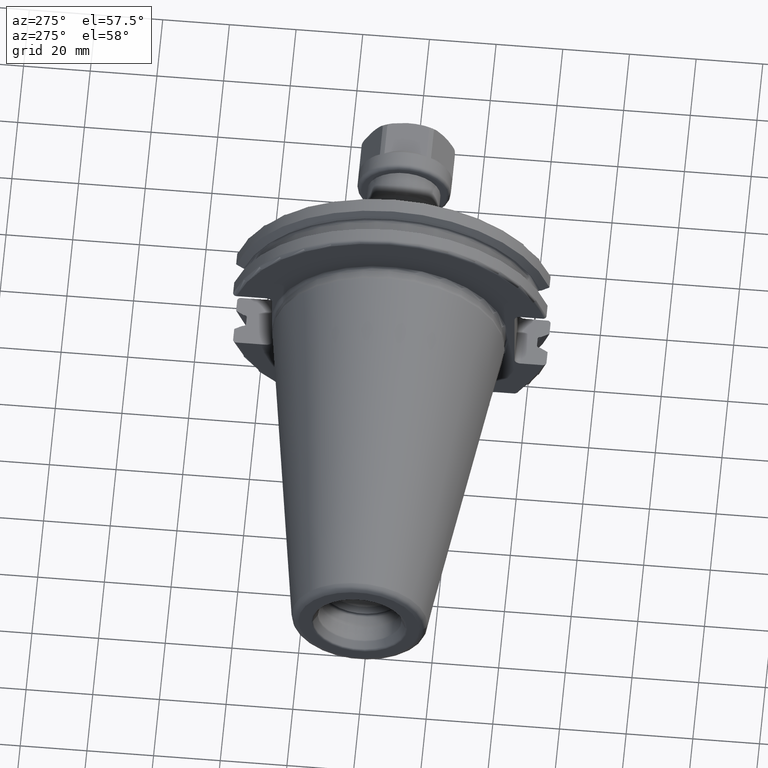
[diagram: clean part render]
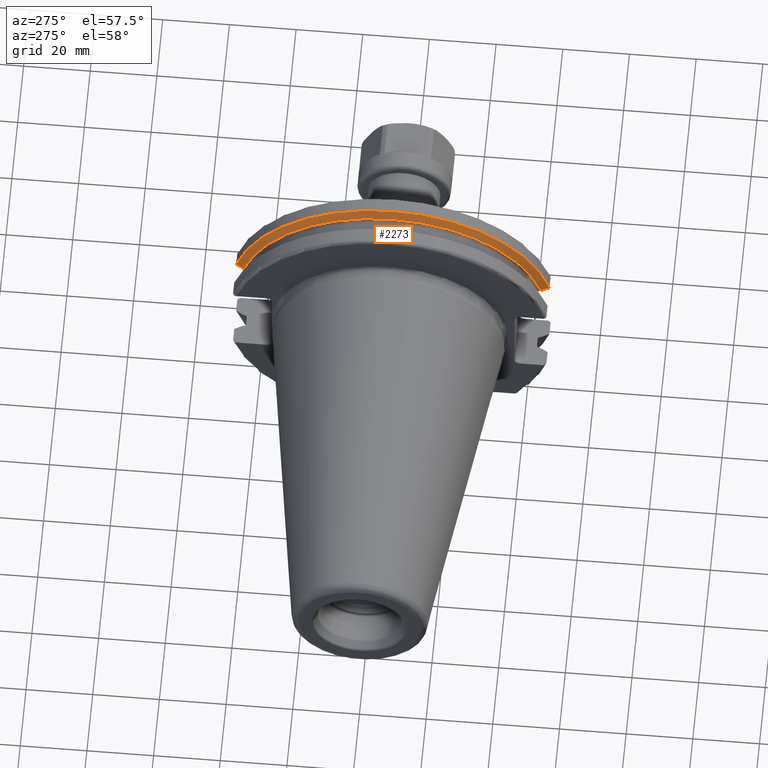
[diagram: same view with one face highlighted and labeled with its STEP entity id]
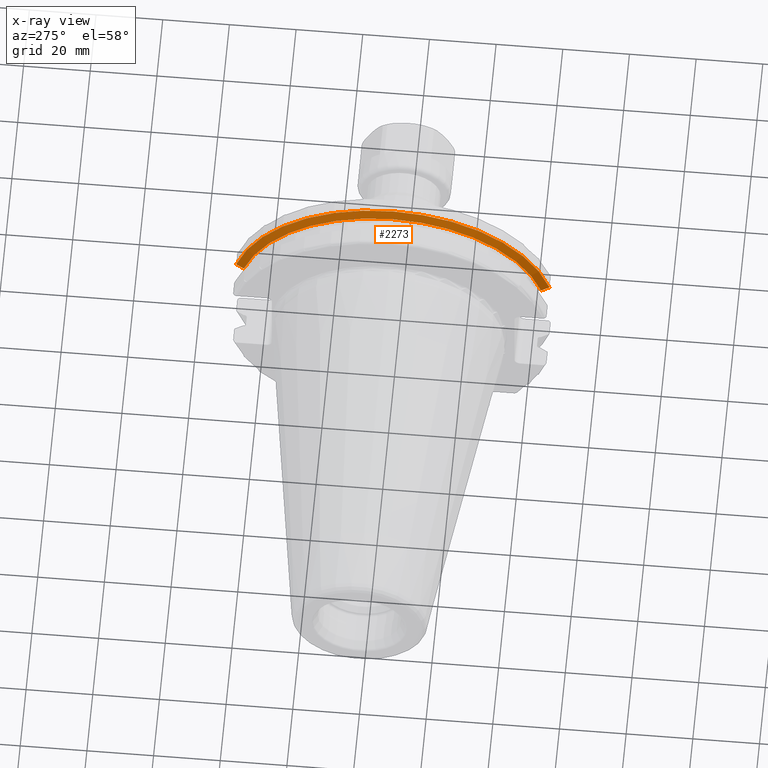
[diagram: x-ray of the same camera — body ghosted, the highlighted face saturated]
A machine part, auxiliary view. The second image highlights one B-rep face of the part: STEP entity #2273.
The next image is the same camera in x-ray: the body ghosted, the highlighted face saturated — about 0% of this face is hidden behind the body in this view.
In plain terms, the highlighted conical surface has half-angle 60 deg.
Its self-contained STEP definition (entity closure, byte-faithful):
#420=CARTESIAN_POINT('',(1.441537838583E1,0.E0,0.E0));
#421=DIRECTION('',(1.E0,0.E0,0.E0));
#422=DIRECTION('',(0.E0,9.643354064066E-1,2.646832521159E-1));
#423=AXIS2_PLACEMENT_3D('',#420,#421,#422);
#584=CARTESIAN_POINT('',(1.441537838583E1,4.699929686974E1,1.29E1));
#585=CARTESIAN_POINT('',(1.426451908496E1,4.672833723043E1,1.29E1));
#586=CARTESIAN_POINT('',(1.396501135619E1,4.619006057421E1,1.29E1));
#587=CARTESIAN_POINT('',(1.352242021955E1,4.539363402665E1,1.29E1));
#588=CARTESIAN_POINT('',(1.323173924582E1,4.486988275438E1,1.29E1));
#589=CARTESIAN_POINT('',(1.30875E1,4.460981716077E1,1.29E1));
#591=CARTESIAN_POINT('',(1.30875E1,-4.460981716077E1,1.29E1));
#592=CARTESIAN_POINT('',(1.323171622645E1,-4.486984125009E1,1.29E1));
#593=CARTESIAN_POINT('',(1.352236645045E1,-4.539353719098E1,1.29E1));
#594=CARTESIAN_POINT('',(1.396495664446E1,-4.618996220278E1,1.29E1));
#595=CARTESIAN_POINT('',(1.426449561388E1,-4.672829507383E1,1.29E1));
#596=CARTESIAN_POINT('',(1.441537838583E1,-4.699929686974E1,1.29E1));
#598=CARTESIAN_POINT('',(1.30875E1,0.E0,0.E0));
#599=DIRECTION('',(1.E0,0.E0,0.E0));
#600=DIRECTION('',(0.E0,9.606411165078E-1,2.777924499957E-1));
#601=AXIS2_PLACEMENT_3D('',#598,#599,#600);
#1414=CARTESIAN_POINT('',(1.30875E1,4.460981716077E1,1.29E1));
#1415=VERTEX_POINT('',#1414);
#1424=CARTESIAN_POINT('',(1.30875E1,-4.460981716077E1,1.29E1));
#1425=VERTEX_POINT('',#1424);
#1426=VERTEX_POINT('',#584);
#1427=VERTEX_POINT('',#596);
#2262=CARTESIAN_POINT('',(1.375143919291E1,0.E0,0.E0));
#2263=DIRECTION('',(1.E0,0.E0,0.E0));
#2264=DIRECTION('',(0.E0,-1.E0,0.E0));
#2265=AXIS2_PLACEMENT_3D('',#2262,#2263,#2264);
#2266=CONICAL_SURFACE('',#2265,4.758752358474E1,6.E1);
#2267=ORIENTED_EDGE('',*,*,#2064,.F.);
#2268=ORIENTED_EDGE('',*,*,#2119,.T.);
#2269=ORIENTED_EDGE('',*,*,#2017,.F.);
#2270=ORIENTED_EDGE('',*,*,#2225,.F.);
#2271=EDGE_LOOP('',(#2267,#2268,#2269,#2270));
#2272=FACE_OUTER_BOUND('',#2271,.F.);
#2273=ADVANCED_FACE('',(#2272),#2266,.T.);
#424=CIRCLE('',#423,4.87375E1);
#590=B_SPLINE_CURVE_WITH_KNOTS('',3,(#584,#585,#586,#587,#588,#589),
.UNSPECIFIED.,.F.,.F.,(4,1,1,4),(0.E0,3.333333333333E-1,6.666666666667E-1,1.E0),
.UNSPECIFIED.);
#597=B_SPLINE_CURVE_WITH_KNOTS('',3,(#591,#592,#593,#594,#595,#596),
.UNSPECIFIED.,.F.,.F.,(4,1,1,4),(0.E0,3.333333333333E-1,6.666666666667E-1,1.E0),
.UNSPECIFIED.);
#602=CIRCLE('',#601,4.643754716948E1);
#2017=EDGE_CURVE('',#1425,#1427,#597,.T.);
#2064=EDGE_CURVE('',#1426,#1415,#590,.T.);
#2119=EDGE_CURVE('',#1426,#1427,#424,.T.);
#2225=EDGE_CURVE('',#1415,#1425,#602,.T.);